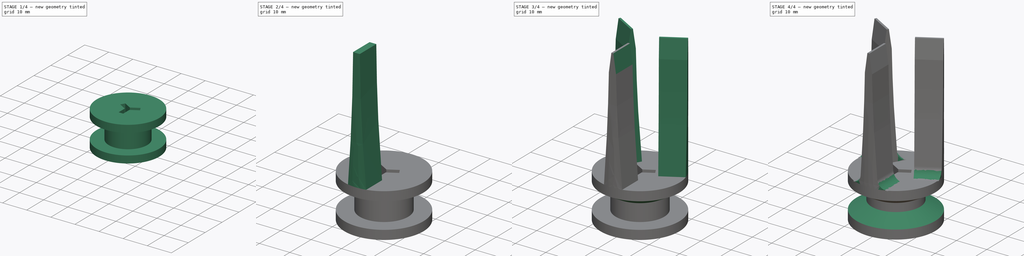
[diagram: build sequence overview — one tinted view per stage of 4, left to right]
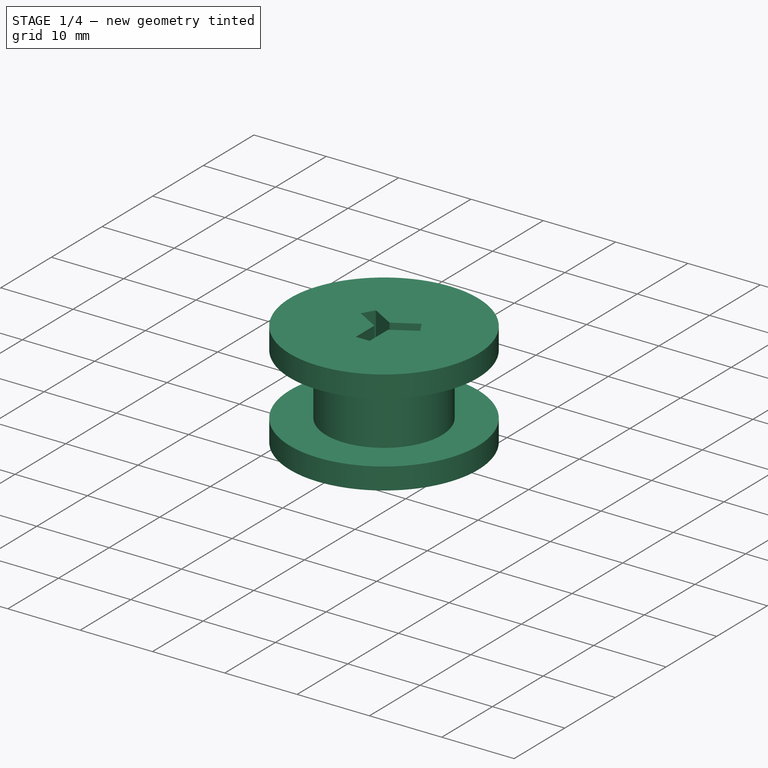
[diagram: stage 1 of 4 — iso view after this stage's code; geometry added in this stage tinted green]
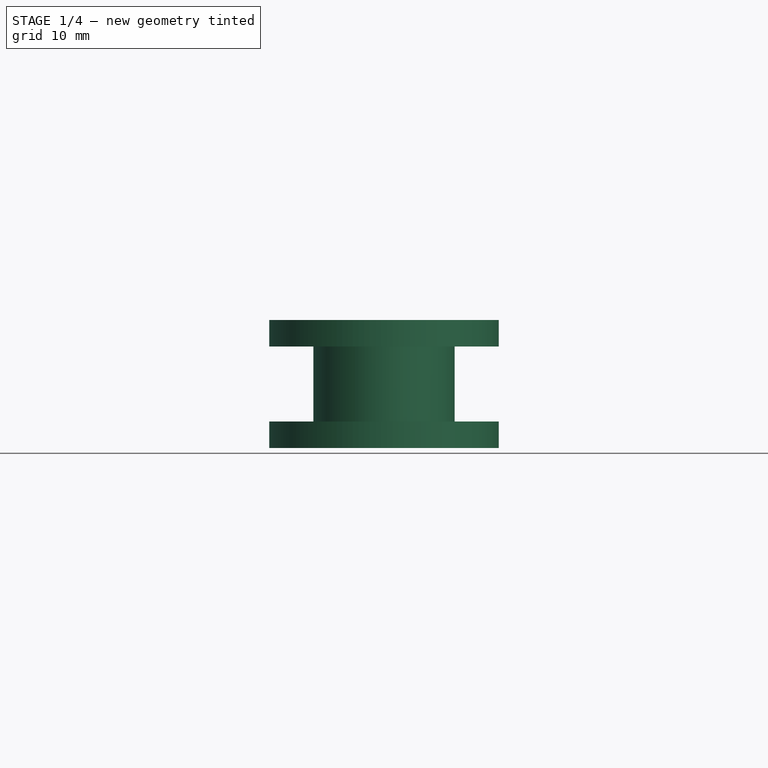
[diagram: stage 1 of 4 — front view after this stage's code; geometry added in this stage tinted green]
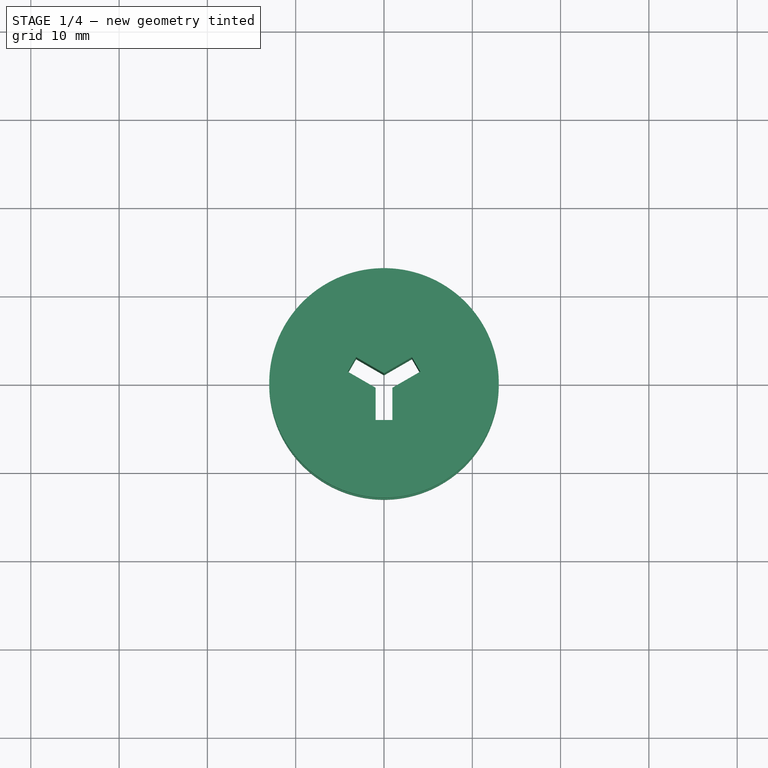
[diagram: stage 1 of 4 — top view after this stage's code; geometry added in this stage tinted green]
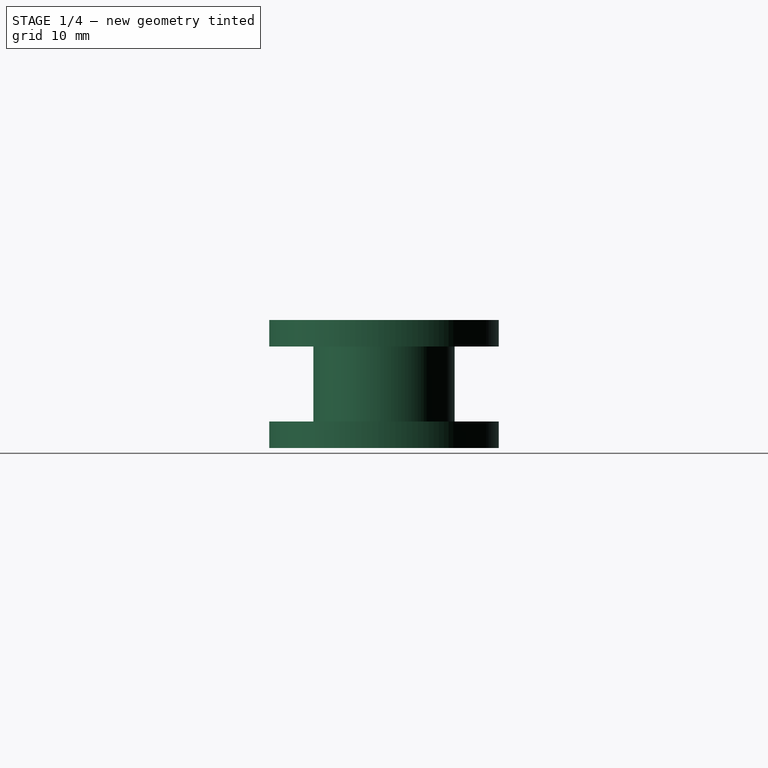
[diagram: stage 1 of 4 — right view after this stage's code; geometry added in this stage tinted green]
FCSTD DOCUMENT  (FreeCAD 1.0R39285 (Git))
Label: Вставка в кабачок
License: All rights reserved
LicenseURL: https://en.wikipedia.org/wiki/All_rights_reserved
objects: Sketcher::SketchObject×6, PartDesign::Chamfer×4, PartDesign::Revolution×1, PartDesign::Pocket×1, PartDesign::AdditiveLoft×1, PartDesign::PolarPattern×1, PartDesign::Fillet×1, PartDesign::Body×1
note: 39 computed .brp shape members not serialized (recipe doc carries the construction recipe); baked Part::Feature solids carry a one-line shape summary decoded from their .brp

FEATURE [Sketcher::SketchObject] Sketch
  ArcFitTolerance = 1e-06
  AttachmentSupport = -> [XZ_Plane]
  FullyConstrained = true
  MakeInternals = false
  MapMode = 5
  Placement = pos=(0,0,0) rot=(1,0,0;1.5708rad)
  sketch-geometry (8):
    g0: LineSegment StartX=-8 StartY=4.25 StartZ=0 EndX=-8 EndY=-4.25 EndZ=0
    g1: LineSegment StartX=-8 StartY=-4.25 StartZ=0 EndX=-13 EndY=-4.25 EndZ=0
    g2: LineSegment StartX=-13 StartY=-4.25 StartZ=0 EndX=-13 EndY=-7.25 EndZ=0
    g3: LineSegment StartX=-13 StartY=-7.25 StartZ=0 EndX=0 EndY=-7.25 EndZ=0
    g4: LineSegment StartX=0 StartY=-7.25 StartZ=0 EndX=0 EndY=7.25 EndZ=0
    g5: LineSegment StartX=0 StartY=7.25 StartZ=0 EndX=-13 EndY=7.25 EndZ=0
    g6: LineSegment StartX=-13 StartY=7.25 StartZ=0 EndX=-13 EndY=4.25 EndZ=0
    g7: LineSegment StartX=-13 StartY=4.25 StartZ=0 EndX=-8 EndY=4.25 EndZ=0
  constraints (23):
    c: Vertical(g0)
    c: Coincident(g0,g1)
    c: Coincident(g1,g2)
    c: Coincident(g2,g3)
    c: Coincident(g3,g4)
    c: Vertical(g4)
    c: Coincident(g4,g5)
    c: Coincident(g5,g6)
    c: Coincident(g6,g7)
    c: Coincident(g7,g0)
    c: Vertical(g2)
    c: Vertical(g6)
    c: Horizontal(g7)
    c: Horizontal(g1)
    c: Horizontal(g5)
    c: Horizontal(g3)
    c: PointOnObject(g-1,g4)
    c: Symmetric(g1,g6,g-1)
    c: Equal(g2,g6)
    c: DistanceY(g0,g0) = 8.5
    c: DistanceY(g6,g6) = 3
    c: DistanceX(g5,g5) = 13
    c: DistanceX(g0,g-1) = 8
FEATURE [PartDesign::Revolution] Revolution
  Angle = 360
  Angle2 = 60
  Axis = (0,2e-16,1)
  Base = (0,0,0)
  Placement = pos=(0,0,0) rot=(1,0,0;1.5708rad)
  Profile = -> Sketch
  ReferenceAxis = -> Sketch [V_Axis]
  Refine = true
  Suppressed = false
  Type = 0
FEATURE [Sketcher::SketchObject] Sketch001
  ArcFitTolerance = 1e-06
  AttachmentSupport = -> [XZ_Plane]
  FullyConstrained = true
  MakeInternals = false
  MapMode = 5
  Placement = pos=(0,0,0) rot=(1,0,0;1.5708rad)
FEATURE [Sketcher::SketchObject] Sketch002
  ArcFitTolerance = 1e-06
  AttachmentSupport = -> [Revolution]
  FullyConstrained = true
  MakeInternals = false
  MapMode = 5
  Placement = pos=(0,1.6e-15,7.25) rot=(0,0,1;3.14159rad)
  sketch-geometry (17):
    g0: LineSegment [constr] StartX=0 StartY=5.84545 StartZ=0 EndX=-5.06231 EndY=-2.92272 EndZ=0
    g1: LineSegment [constr] StartX=-5.06231 StartY=-2.92272 StartZ=0 EndX=5.06231 EndY=-2.92272 EndZ=0
    g2: LineSegment [constr] StartX=5.06231 StartY=-2.92272 StartZ=0 EndX=0 EndY=5.84545 EndZ=0
    g3: Circle [constr] CenterX=0 CenterY=0 CenterZ=0 NormalX=0 NormalY=0 NormalZ=1 AngleXU=0 Radius=5.84545
    g4: LineSegment StartX=-4.11231 StartY=-1.27728 StartZ=0 EndX=-3.16231 EndY=-2.92272 EndZ=0
    g5: LineSegment StartX=3.16231 StartY=-2.92272 StartZ=0 EndX=4.11231 EndY=-1.27728 EndZ=0
    g6: LineSegment StartX=0.95 StartY=4.2 StartZ=0 EndX=-0.95 EndY=4.2 EndZ=0
    g7: LineSegment StartX=-0.95 StartY=4.2 StartZ=0 EndX=-0.95 EndY=0.548483 EndZ=0
    g8: LineSegment StartX=0.95 StartY=4.2 StartZ=0 EndX=0.95 EndY=0.548483 EndZ=0
    g9: LineSegment StartX=3.16231 StartY=-2.92272 StartZ=0 EndX=-4e-16 EndY=-1.09697 EndZ=0
    g10: LineSegment StartX=4.11231 StartY=-1.27728 StartZ=0 EndX=0.95 EndY=0.548483 EndZ=0
    g11: LineSegment StartX=-3.16231 StartY=-2.92272 StartZ=0 EndX=-4e-16 EndY=-1.09697 EndZ=0
    g12: LineSegment StartX=-4.11231 StartY=-1.27728 StartZ=0 EndX=-0.95 EndY=0.548483 EndZ=0
    g13: LineSegment [constr] StartX=-0.95 StartY=0.548483 StartZ=0 EndX=-2e-16 EndY=-1e-16 EndZ=0
    g14: LineSegment [constr] StartX=0.95 StartY=0.548483 StartZ=0 EndX=-2e-16 EndY=-1e-16 EndZ=0
    g15: LineSegment [constr] StartX=-2e-16 StartY=-1e-16 StartZ=0 EndX=-2e-16 EndY=-1.09697 EndZ=0
    g16: Circle [constr] CenterX=0 CenterY=0 CenterZ=0 NormalX=0 NormalY=0 NormalZ=1 AngleXU=0 Radius=1.09697
  constraints (47):
    c: Coincident(g0,g1)
    c: Coincident(g1,g2)
    c: Coincident(g2,g0)
    c: Equal(g0,g1)
    c: Equal(g0,g2)
    c: PointOnObject(g0,g3)
    c: PointOnObject(g1,g3)
    c: PointOnObject(g2,g3)
    c: Coincident(g3,g-1)
    c: PointOnObject(g2,g-2)
    c: PointOnObject(g4,g0)
    c: PointOnObject(g4,g1)
    c: PointOnObject(g5,g1)
    c: PointOnObject(g5,g2)
    c: PointOnObject(g6,g2)
    c: PointOnObject(g6,g0)
    c: Coincident(g6,g7)
    c: Coincident(g6,g8)
    c: Coincident(g5,g9)
    c: Coincident(g5,g10)
    c: Coincident(g4,g11)
    c: Coincident(g4,g12)
    c: Coincident(g11,g9)
    c: Coincident(g10,g8)
    c: Coincident(g12,g7)
    c: Equal(g14,g13)
    c: Equal(g13,g15)
    c: Coincident(g16,g3)
    c: PointOnObject(g13,g16)
    c: Coincident(g13,g14)
    c: Coincident(g13,g15)
    c: PointOnObject(g14,g16)
    c: PointOnObject(g15,g16)
    c: Angle(g14,g13) = 2.0944
    c: Angle(g13,g15) = 2.0944
    c: Coincident(g13,g7)
    c: Coincident(g15,g9)
    c: Coincident(g14,g8)
    c: Vertical(g15)
    c: Equal(g5,g4)
    c: Equal(g4,g6)
    c: Vertical(g7)
    c: Parallel(g0,g5)
    c: Parallel(g4,g2)
    c: Parallel(g1,g6)
    c: Distance(g6,g6) = 1.9
    c: Distance(g3,g6) = 4.2
FEATURE [PartDesign::Pocket] Pocket
  BaseFeature = -> Revolution
  Direction = (0,0,-1)
  Length = 5
  Length2 = 5
  Placement = pos=(0,0,0) rot=(1,0,0;1.5708rad)
  Profile = -> Sketch002
  ReferenceAxis = -> Sketch002 [N_Axis]
  Refine = true
  Suppressed = false
  Type = 1
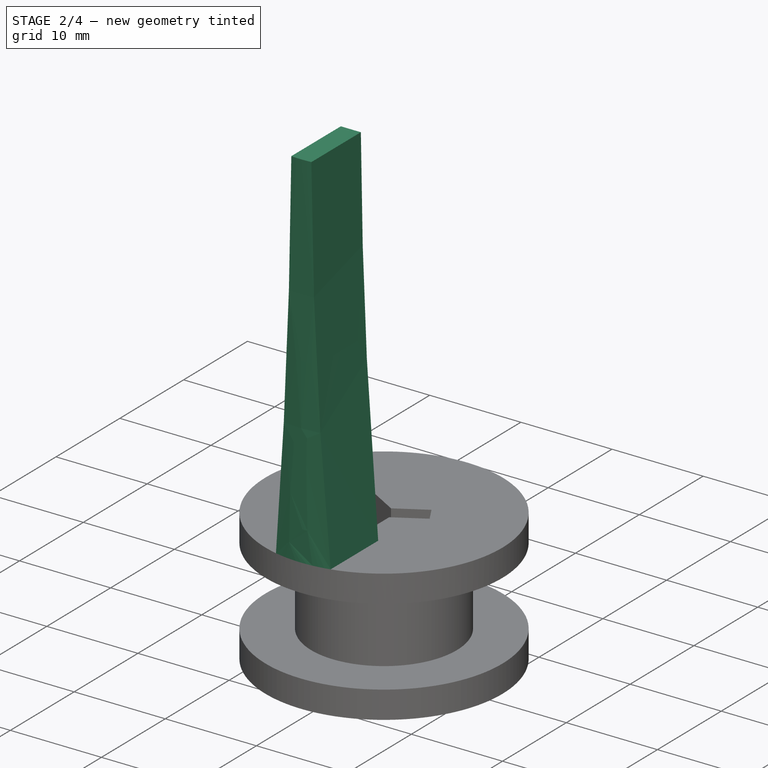
[diagram: stage 2 of 4 — iso view after this stage's code; geometry added in this stage tinted green]
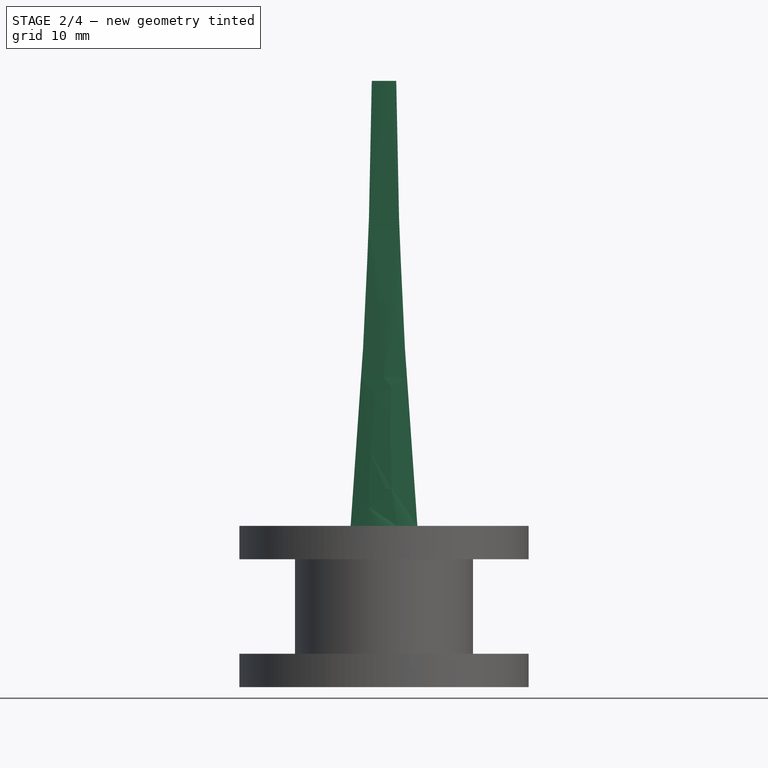
[diagram: stage 2 of 4 — front view after this stage's code; geometry added in this stage tinted green]
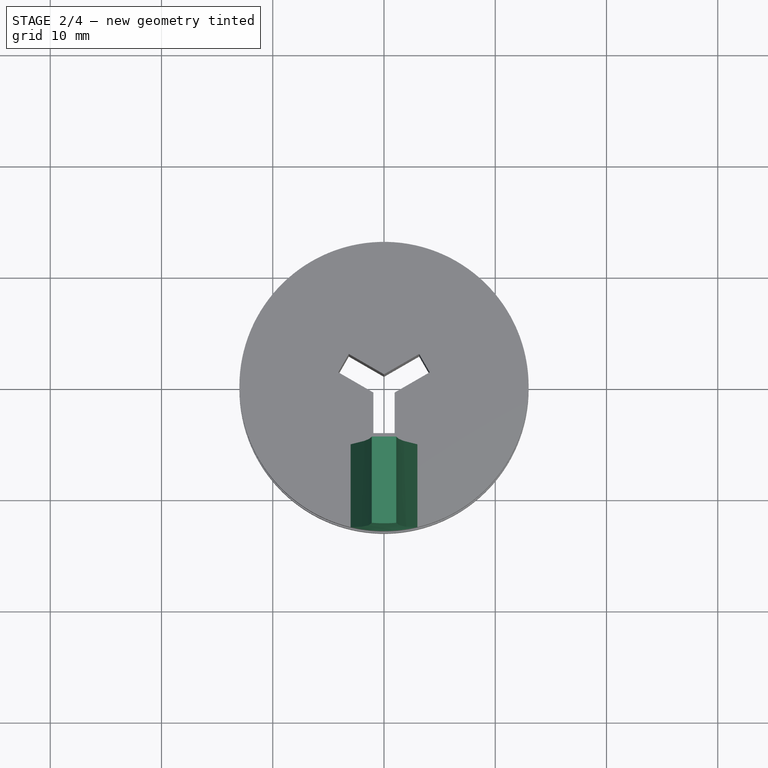
[diagram: stage 2 of 4 — top view after this stage's code; geometry added in this stage tinted green]
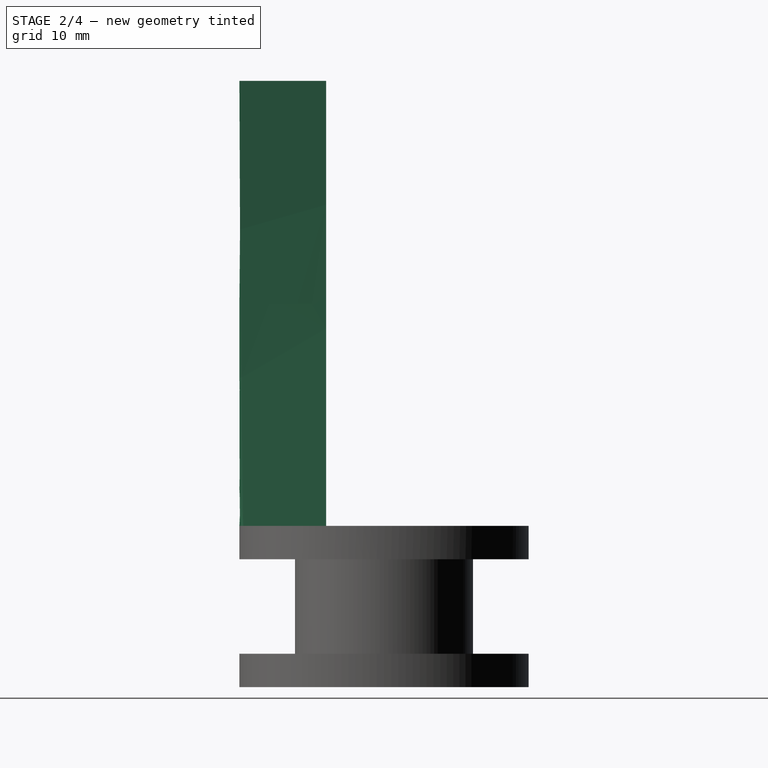
[diagram: stage 2 of 4 — right view after this stage's code; geometry added in this stage tinted green]
FEATURE [PartDesign::Chamfer] Chamfer
  Angle = 45
  Base = -> Pocket [Edge27,Edge26,Edge25,Edge24,Edge23,Edge22,Edge21,Edge20,Edge19]
  BaseFeature = -> Pocket
  ChamferType = 0
  FlipDirection = false
  Placement = pos=(0,0,0) rot=(1,0,0;1.5708rad)
  Refine = true
  Size = 0.8
  Size2 = 1
  SupportTransform = false
  Suppressed = false
  UseAllEdges = false
FEATURE [Sketcher::SketchObject] Sketch003
  ArcFitTolerance = 1e-06
  AttachmentSupport = -> [Chamfer]
  ExternalGeometry = -> [Chamfer]
  FullyConstrained = true
  MakeInternals = false
  MapMode = 5
  Placement = pos=(0,1.6e-15,7.25) rot=(0,0,1;3.14159rad)
  sketch-geometry (4):
    g0: LineSegment StartX=-3 StartY=5.2 StartZ=0 EndX=3 EndY=5.2 EndZ=0
    g1: LineSegment StartX=3 StartY=5.2 StartZ=0 EndX=3 EndY=12.6491 EndZ=0
    g2: LineSegment StartX=-3 StartY=5.2 StartZ=0 EndX=-3 EndY=12.6491 EndZ=0
    g3: ArcOfCircle CenterX=0 CenterY=0 CenterZ=0 NormalX=0 NormalY=0 NormalZ=1 AngleXU=0 Radius=13 StartAngle=1.33793 EndAngle=1.80366
  constraints (11):
    c: Coincident(g0,g1)
    c: Vertical(g1)
    c: Coincident(g0,g2)
    c: Vertical(g2)
    c: Coincident(g3,g-1)
    c: Coincident(g3,g2)
    c: Coincident(g3,g1)
    c: Equal(g3,g-4)
    c: Symmetric(g0,g0,g-2)
    c: Distance(g0,g0) = 6
    c: DistanceY(g-3,g0) = 1
FEATURE [Sketcher::SketchObject] Sketch004
  ArcFitTolerance = 1e-06
  AttachmentOffset = pos=(0,0,16) rot=(0,0,1;0rad)
  AttachmentSupport = -> [Chamfer]
  ExternalGeometry = -> [Sketch003]
  FullyConstrained = true
  MakeInternals = false
  MapMode = 5
  Placement = pos=(0,1.6e-15,23.25) rot=(0,0,1;3.14159rad)
  sketch-geometry (4):
    g0: LineSegment StartX=1.85 StartY=5.2 StartZ=0 EndX=-1.85 EndY=5.2 EndZ=0
    g1: LineSegment StartX=-1.85 StartY=5.2 StartZ=0 EndX=-1.85 EndY=12.8677 EndZ=0
    g2: LineSegment StartX=1.85 StartY=5.2 StartZ=0 EndX=1.85 EndY=12.8677 EndZ=0
    g3: ArcOfCircle CenterX=0 CenterY=0 CenterZ=0 NormalX=0 NormalY=0 NormalZ=1 AngleXU=0 Radius=13 StartAngle=1.428 EndAngle=1.71359
  constraints (11):
    c: PointOnObject(g0,g-3)
    c: Coincident(g0,g1)
    c: Vertical(g1)
    c: Coincident(g0,g2)
    c: Vertical(g2)
    c: DistanceX(g0,g0) = 3.7
    c: Coincident(g3,g-1)
    c: Coincident(g3,g1)
    c: Coincident(g3,g2)
    c: Equal(g3,g-4)
    c: Symmetric(g0,g0,g-2)
FEATURE [Sketcher::SketchObject] Sketch005
  ArcFitTolerance = 1e-06
  AttachmentOffset = pos=(0,0,40) rot=(0,0,1;0rad)
  AttachmentSupport = -> [Chamfer]
  ExternalGeometry = -> [Sketch003,Sketch004]
  FullyConstrained = true
  MakeInternals = false
  MapMode = 5
  Placement = pos=(0,1.6e-15,47.25) rot=(0,0,1;3.14159rad)
  sketch-geometry (4):
    g0: LineSegment StartX=-1.1 StartY=5.2 StartZ=0 EndX=-1.1 EndY=12.9534 EndZ=0
    g1: LineSegment StartX=1.1 StartY=12.9534 StartZ=0 EndX=1.1 EndY=5.2 EndZ=0
    g2: LineSegment StartX=-1.1 StartY=5.2 StartZ=0 EndX=1.1 EndY=5.2 EndZ=0
    g3: ArcOfCircle CenterX=0 CenterY=0 CenterZ=0 NormalX=0 NormalY=0 NormalZ=1 AngleXU=0 Radius=13 StartAngle=1.48608 EndAngle=1.65551
  constraints (11):
    c: Vertical(g1)
    c: Coincident(g2,g0)
    c: Coincident(g2,g1)
    c: Vertical(g0)
    c: PointOnObject(g0,g-3)
    c: Coincident(g3,g-1)
    c: Coincident(g3,g0)
    c: Coincident(g3,g1)
    c: Equal(g3,g-4)
    c: DistanceX(g2,g2) = 2.2
    c: Symmetric(g1,g0,g-2)
FEATURE [PartDesign::AdditiveLoft] AdditiveLoft
  BaseFeature = -> Chamfer
  Closed = false
  Placement = pos=(0,0,0) rot=(1,0,0;1.5708rad)
  Profile = -> Sketch003
  Refine = true
  Ruled = false
  Sections = -> [Sketch004,Sketch005]
  Suppressed = false
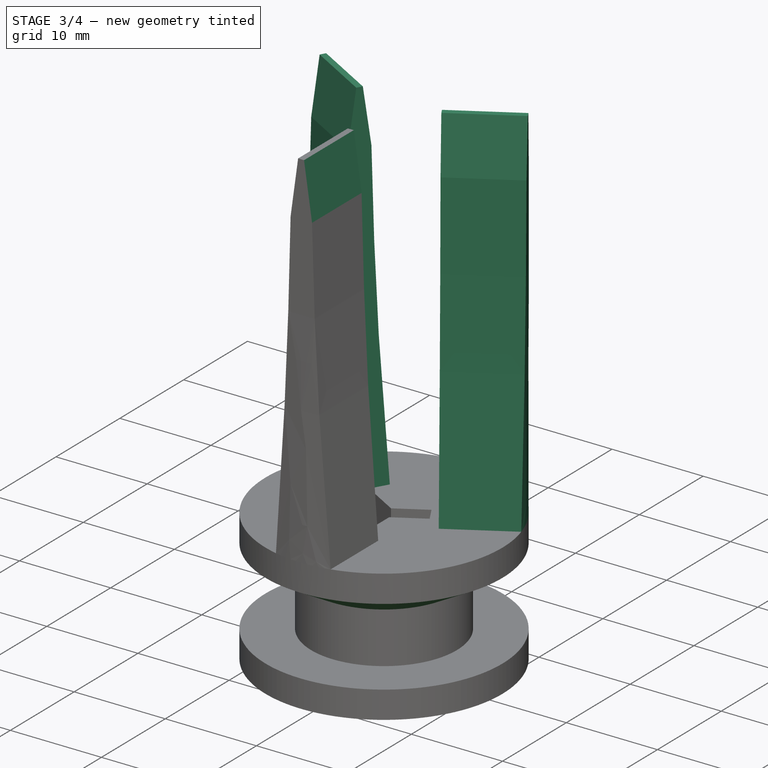
[diagram: stage 3 of 4 — iso view after this stage's code; geometry added in this stage tinted green]
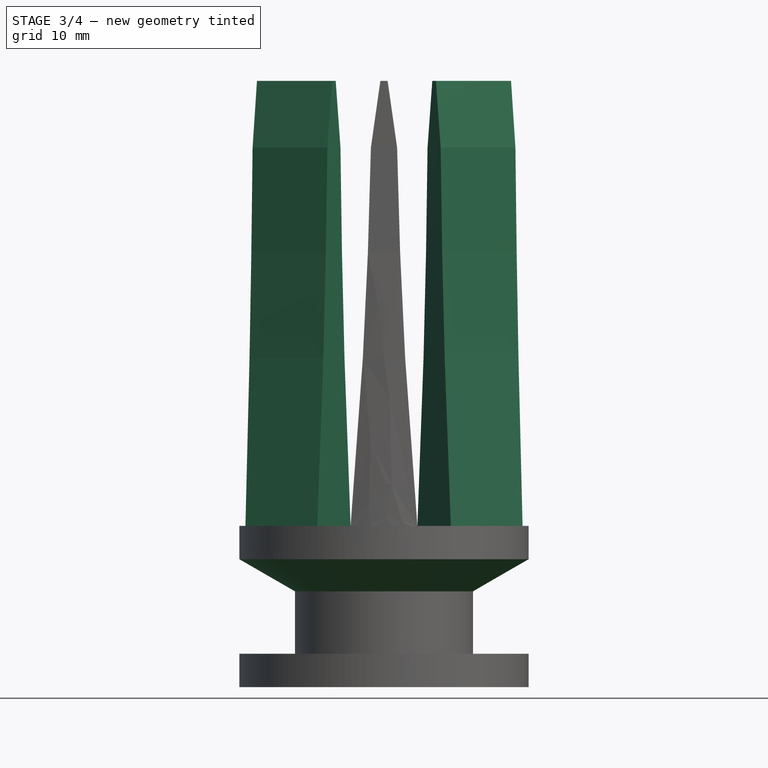
[diagram: stage 3 of 4 — front view after this stage's code; geometry added in this stage tinted green]
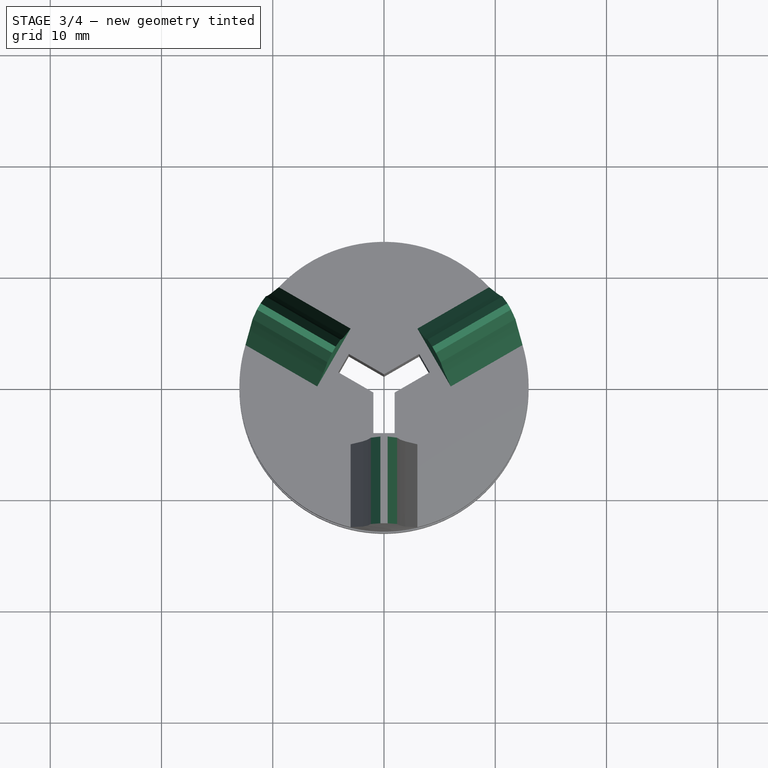
[diagram: stage 3 of 4 — top view after this stage's code; geometry added in this stage tinted green]
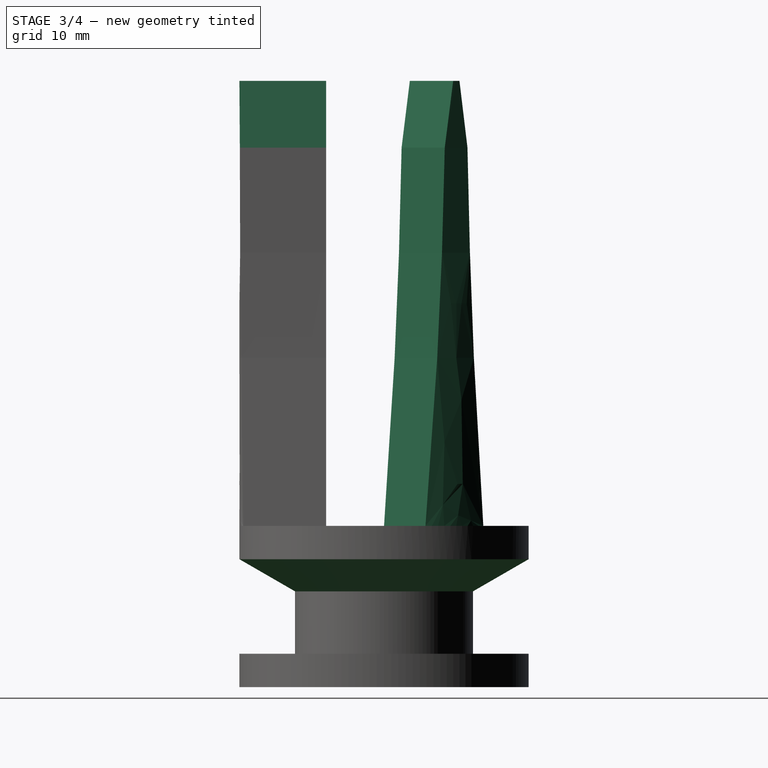
[diagram: stage 3 of 4 — right view after this stage's code; geometry added in this stage tinted green]
FEATURE [PartDesign::PolarPattern] PolarPattern
  Angle = 360
  Axis = -> Sketch003 [N_Axis]
  BaseFeature = -> AdditiveLoft
  Mode = 0
  Occurrences = 3
  Offset = 120
  Originals = -> [AdditiveLoft]
  Placement = pos=(0,0,0) rot=(1,0,0;1.5708rad)
  Refine = true
  Suppressed = false
  TransformMode = 0
FEATURE [PartDesign::Chamfer] Chamfer001
  Angle = 7
  Base = -> PolarPattern [Edge78,Edge82,Edge75,Edge71,Edge89,Edge85]
  BaseFeature = -> PolarPattern
  ChamferType = 2
  FlipDirection = false
  Placement = pos=(0,0,0) rot=(1,0,0;1.5708rad)
  Refine = true
  Size = 6
  Size2 = 1
  SupportTransform = false
  Suppressed = false
  UseAllEdges = false
FEATURE [PartDesign::Chamfer] Chamfer002
  Angle = 30
  Base = -> Chamfer001 [Edge84]
  BaseFeature = -> Chamfer001
  ChamferType = 2
  FlipDirection = false
  Placement = pos=(0,0,0) rot=(1,0,0;1.5708rad)
  Refine = true
  Size = 4.999
  Size2 = 1
  SupportTransform = false
  Suppressed = false
  UseAllEdges = false
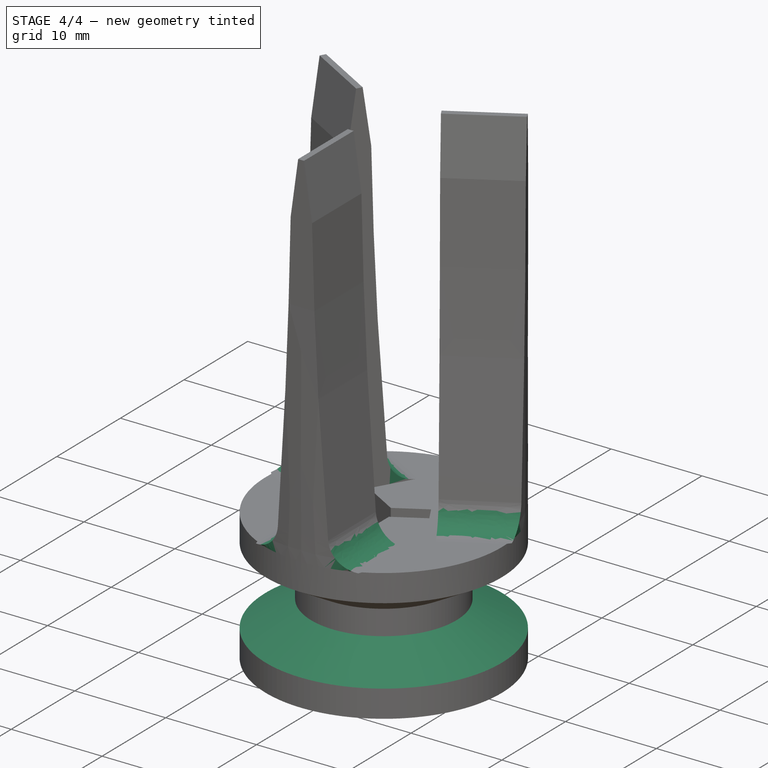
[diagram: stage 4 of 4 — iso view after this stage's code; geometry added in this stage tinted green]
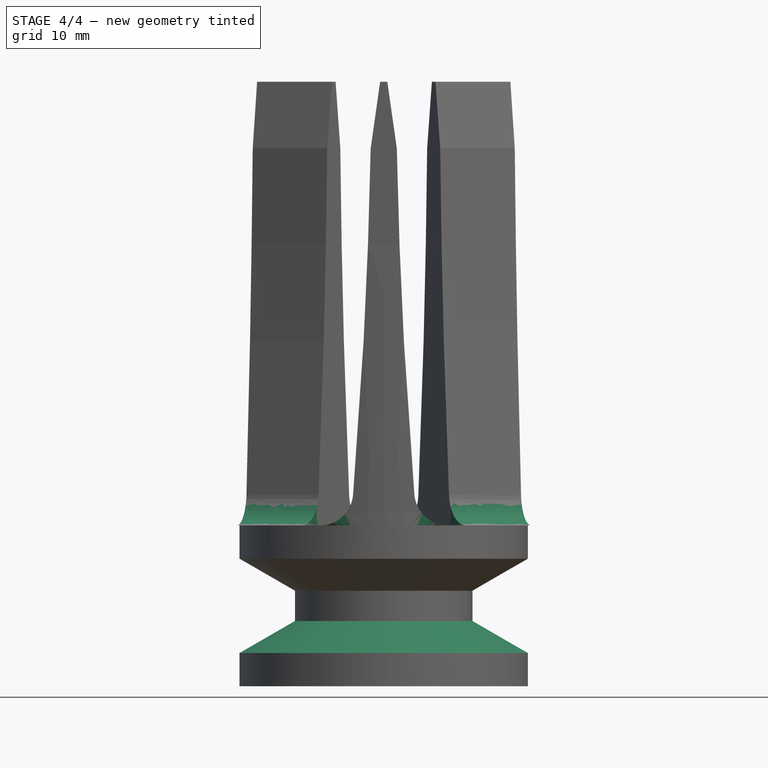
[diagram: stage 4 of 4 — front view after this stage's code; geometry added in this stage tinted green]
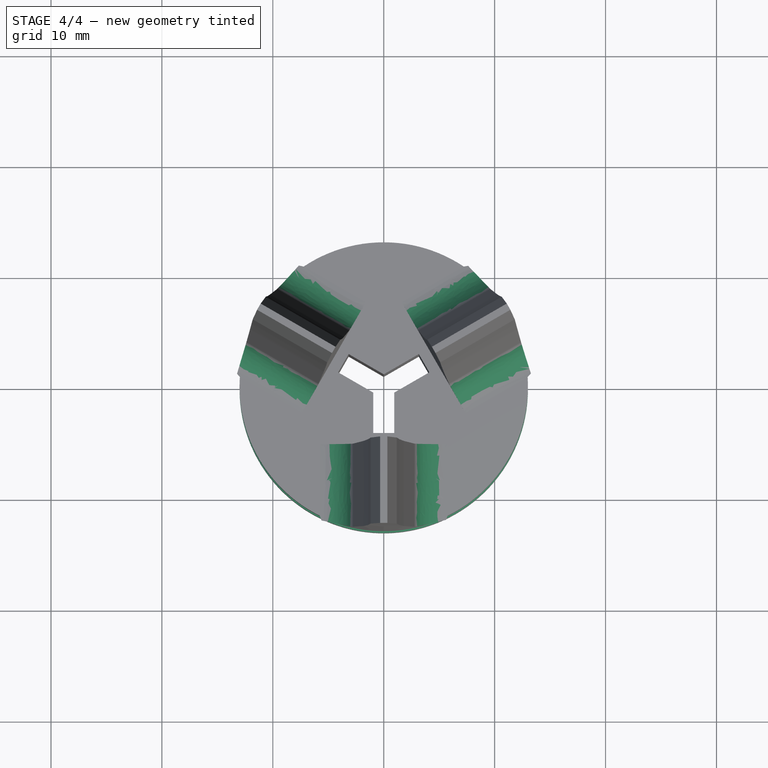
[diagram: stage 4 of 4 — top view after this stage's code; geometry added in this stage tinted green]
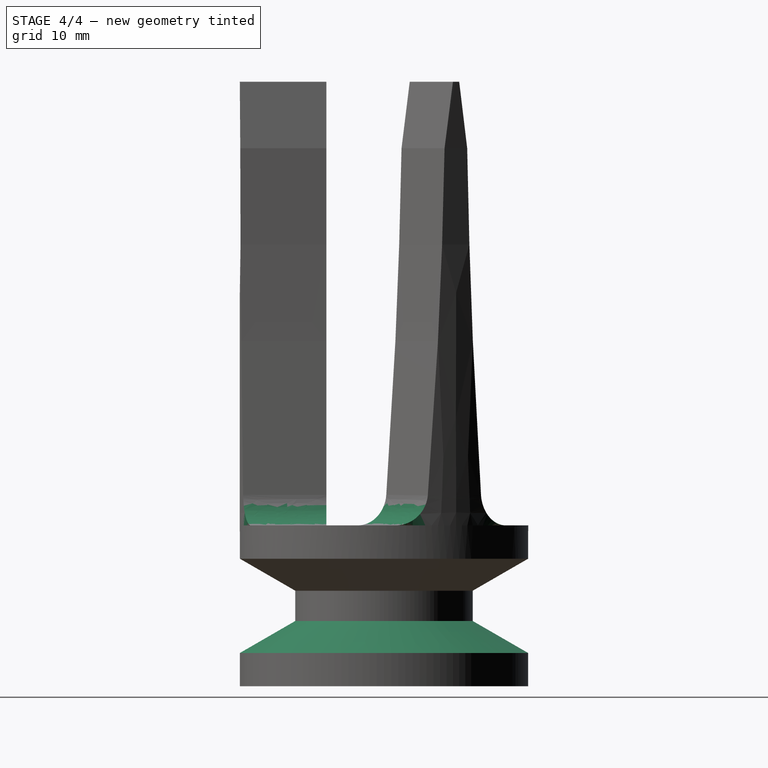
[diagram: stage 4 of 4 — right view after this stage's code; geometry added in this stage tinted green]
FEATURE [PartDesign::Chamfer] Chamfer003
  Angle = 30
  Base = -> Chamfer002 [Edge14]
  BaseFeature = -> Chamfer002
  ChamferType = 2
  FlipDirection = true
  Placement = pos=(0,0,0) rot=(1,0,0;1.5708rad)
  Refine = true
  Size = 4.999
  Size2 = 1
  SupportTransform = false
  Suppressed = false
  UseAllEdges = false
FEATURE [PartDesign::Fillet] Fillet
  Base = -> Chamfer003 [Edge29,Edge37,Edge35,Edge34,Edge32,Edge31]
  BaseFeature = -> Chamfer003
  Placement = pos=(0,0,0) rot=(1,0,0;1.5708rad)
  Radius = 3
  Refine = true
  SupportTransform = false
  Suppressed = false
  UseAllEdges = false
FEATURE [PartDesign::Body] Body  label="Тело"
  AllowCompound = false
  Group = -> [Sketch,Revolution,Sketch001,Sketch002,Pocket,Chamfer,Sketch003,Sketch004,Sketch005,AdditiveLoft,PolarPattern,Chamfer001,Chamfer002,Chamfer003,Fillet]
  Origin = -> Origin
  Tip = -> Fillet
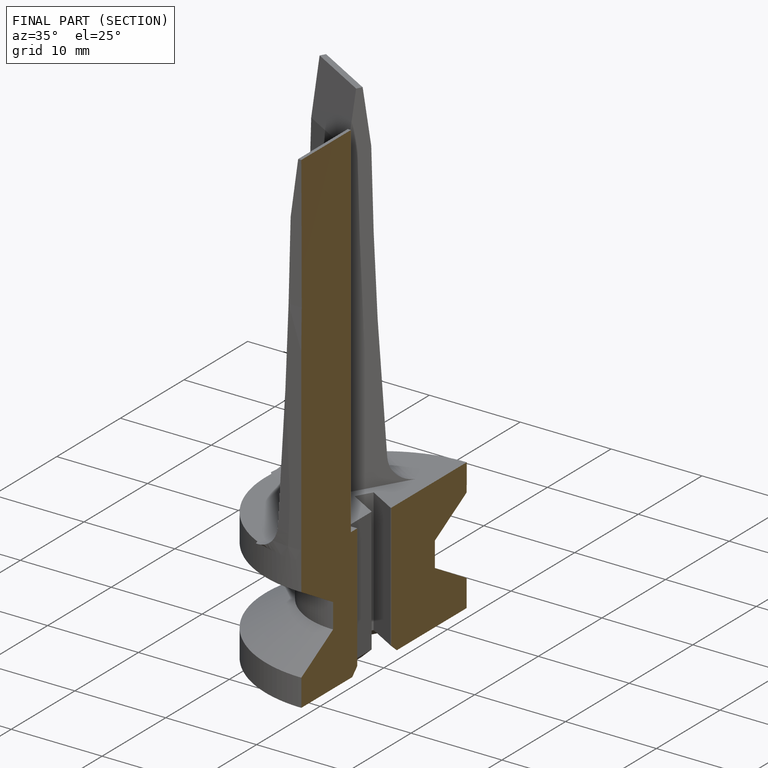
[diagram: finished part — half-section view (interior)]
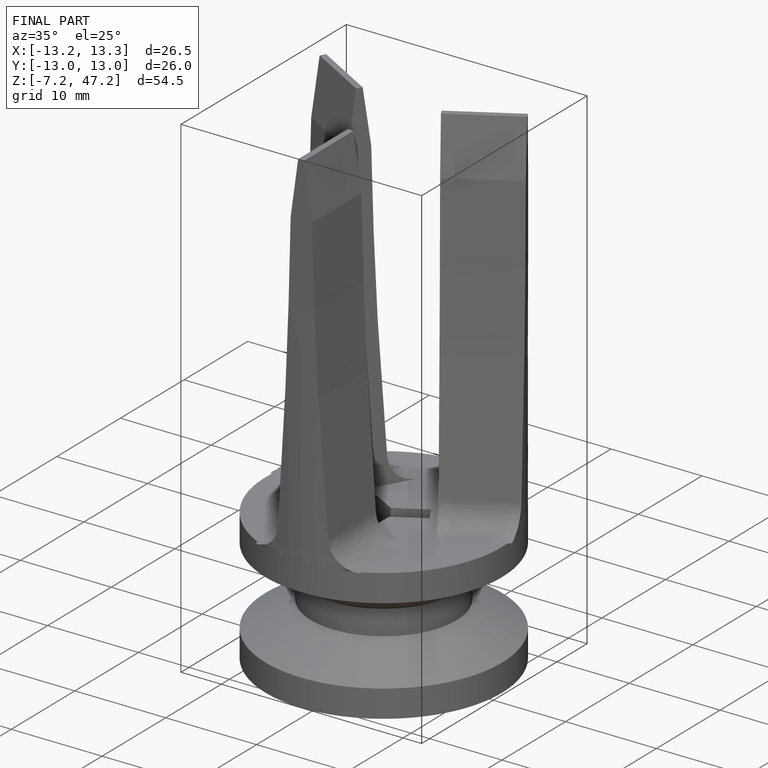
[diagram: finished part — iso view with bounding-box wireframe]
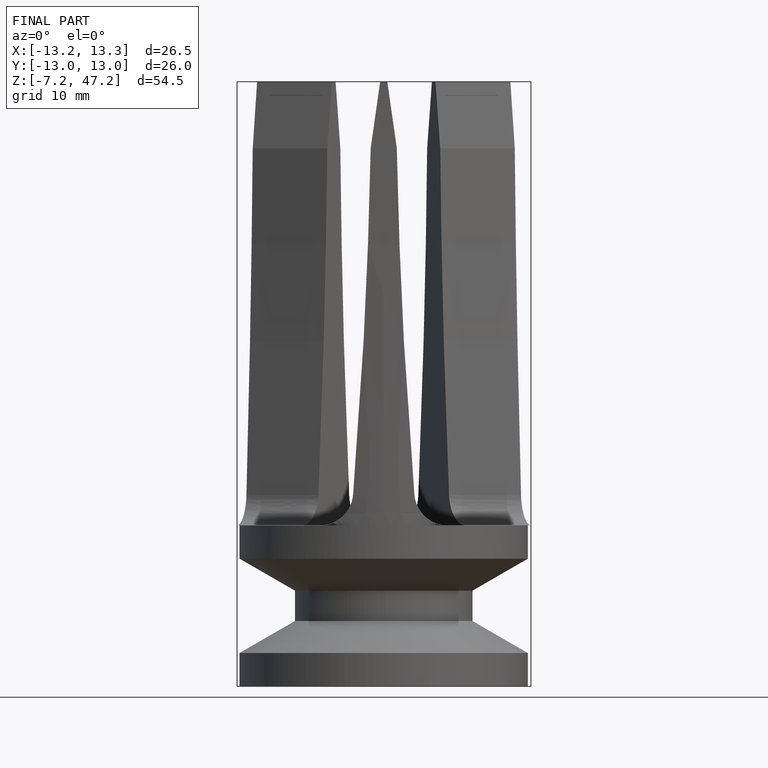
[diagram: finished part — front view with bounding-box wireframe]
